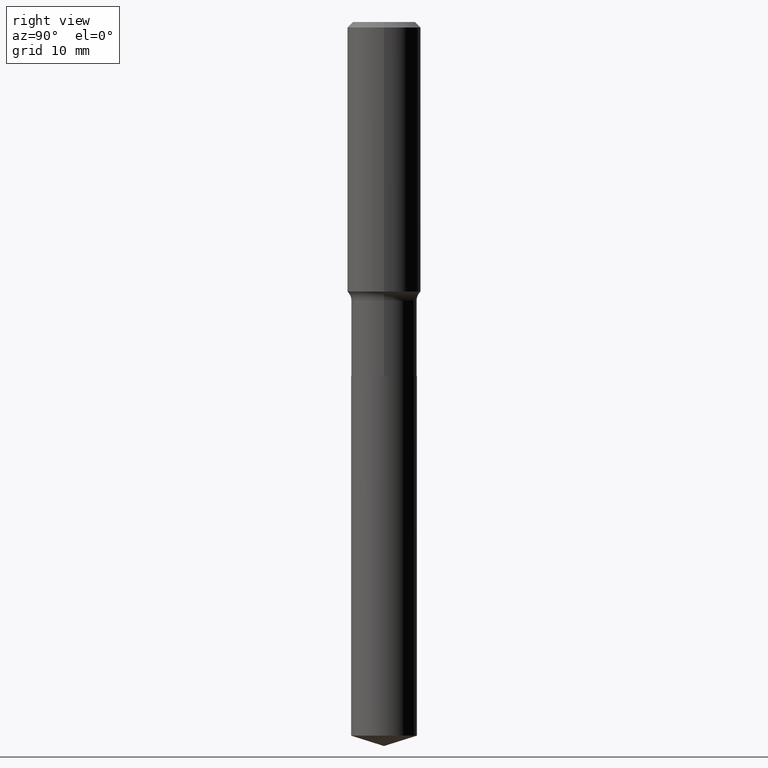
[diagram: clean part render]
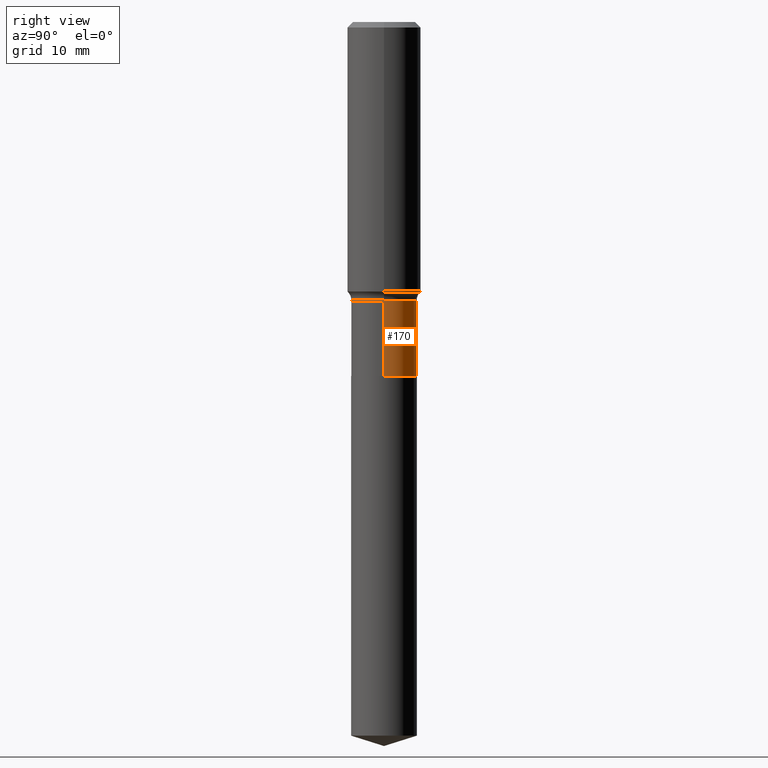
[diagram: same view with one face highlighted and labeled with its STEP entity id]
A machine part, right view. The second image highlights one B-rep face of the part: STEP entity #170.
In plain terms, the highlighted cylindrical surface (edge-blend (fillet) strip) has radius 5.3505 mm, axis along (-0, 0, 1).
Its self-contained STEP definition (entity closure, byte-faithful):
#14 = VERTEX_POINT ( 'NONE', #455 ) ;
#32 = DIRECTION ( 'NONE',  ( -2.445468806185136877E-29, 3.491481338843145188E-15, 1.000000000000000000 ) ) ;
#33 = CARTESIAN_POINT ( 'NONE',  ( 0.2106500000000000039, -9.400813504835161960E-15, -2.271199999999999442 ) ) ;
#35 = ORIENTED_EDGE ( 'NONE', *, *, #317, .T. ) ;
#42 = AXIS2_PLACEMENT_3D ( 'NONE', #132, #437, #247 ) ;
#50 = CARTESIAN_POINT ( 'NONE',  ( 5.554148752607681363E-29, -7.929852416780550200E-15, -2.271199999999999442 ) ) ;
#76 = VERTEX_POINT ( 'NONE', #461 ) ;
#77 = DIRECTION ( 'NONE',  ( -2.445468806185136877E-29, 3.491481338843145188E-15, 1.000000000000000000 ) ) ;
#96 = EDGE_CURVE ( 'NONE', #372, #76, #188, .T. ) ;
#102 = LINE ( 'NONE', #178, #373 ) ;
#114 = ORIENTED_EDGE ( 'NONE', *, *, #434, .F. ) ;
#121 = DIRECTION ( 'NONE',  ( -2.445468806185136597E-29, 3.491481338843145583E-15, 1.000000000000000000 ) ) ;
#127 = DIRECTION ( 'NONE',  ( -2.445468806185136597E-29, 3.491481338843145583E-15, 1.000000000000000000 ) ) ;
#132 = CARTESIAN_POINT ( 'NONE',  ( 0.000000000000000000, 0.000000000000000000, 0.000000000000000000 ) ) ;
#170 = ADVANCED_FACE ( 'NONE', ( #324 ), #476, .T. ) ;
#171 = CARTESIAN_POINT ( 'NONE',  ( 4.370541850414076546E-29, -6.239975448780469270E-15, -1.787199999999999900 ) ) ;
#178 = CARTESIAN_POINT ( 'NONE',  ( -0.2106499999999999762, 1.496758272878650872E-15, -1.036173676762195916E-29 ) ) ;
#188 = CIRCLE ( 'NONE', #299, 0.2106500000000000039 ) ;
#195 = DIRECTION ( 'NONE',  ( 1.000000000000000000, -6.982962677686265922E-15, 0.000000000000000000 ) ) ;
#196 = VECTOR ( 'NONE', #77, 39.37007874015748143 ) ;
#206 = EDGE_CURVE ( 'NONE', #212, #14, #474, .T. ) ;
#212 = VERTEX_POINT ( 'NONE', #325 ) ;
#247 = DIRECTION ( 'NONE',  ( 1.000000000000000000, -6.982962677686266711E-15, 4.876176775795935793E-29 ) ) ;
#279 = DIRECTION ( 'NONE',  ( 1.000000000000000000, -6.982962677686267499E-15, 0.000000000000000000 ) ) ;
#285 = ORIENTED_EDGE ( 'NONE', *, *, #206, .F. ) ;
#299 = AXIS2_PLACEMENT_3D ( 'NONE', #50, #121, #195 ) ;
#317 = EDGE_CURVE ( 'NONE', #76, #14, #102, .T. ) ;
#324 = FACE_OUTER_BOUND ( 'NONE', #460, .T. ) ;
#325 = CARTESIAN_POINT ( 'NONE',  ( 0.2106499999999999484, -7.710936536835081819E-15, -1.787199999999999900 ) ) ;
#360 = AXIS2_PLACEMENT_3D ( 'NONE', #171, #127, #279 ) ;
#372 = VERTEX_POINT ( 'NONE', #33 ) ;
#373 = VECTOR ( 'NONE', #32, 39.37007874015748143 ) ;
#392 = LINE ( 'NONE', #423, #196 ) ;
#423 = CARTESIAN_POINT ( 'NONE',  ( 0.2106499999999999762, -1.470961088054611958E-15, 1.027166637821413806E-29 ) ) ;
#434 = EDGE_CURVE ( 'NONE', #372, #212, #392, .T. ) ;
#437 = DIRECTION ( 'NONE',  ( -2.445468806185136597E-29, 3.491481338843145583E-15, 1.000000000000000000 ) ) ;
#445 = ORIENTED_EDGE ( 'NONE', *, *, #96, .T. ) ;
#455 = CARTESIAN_POINT ( 'NONE',  ( -0.2106499999999999484, -5.588155659901859060E-15, -1.787199999999999900 ) ) ;
#460 = EDGE_LOOP ( 'NONE', ( #445, #35, #285, #114 ) ) ;
#461 = CARTESIAN_POINT ( 'NONE',  ( -0.2106500000000000039, -5.588155659901859060E-15, -2.271199999999999442 ) ) ;
#474 = CIRCLE ( 'NONE', #360, 0.2106499999999999484 ) ;
#476 = CYLINDRICAL_SURFACE ( 'NONE', #42, 0.2106499999999999762 ) ;